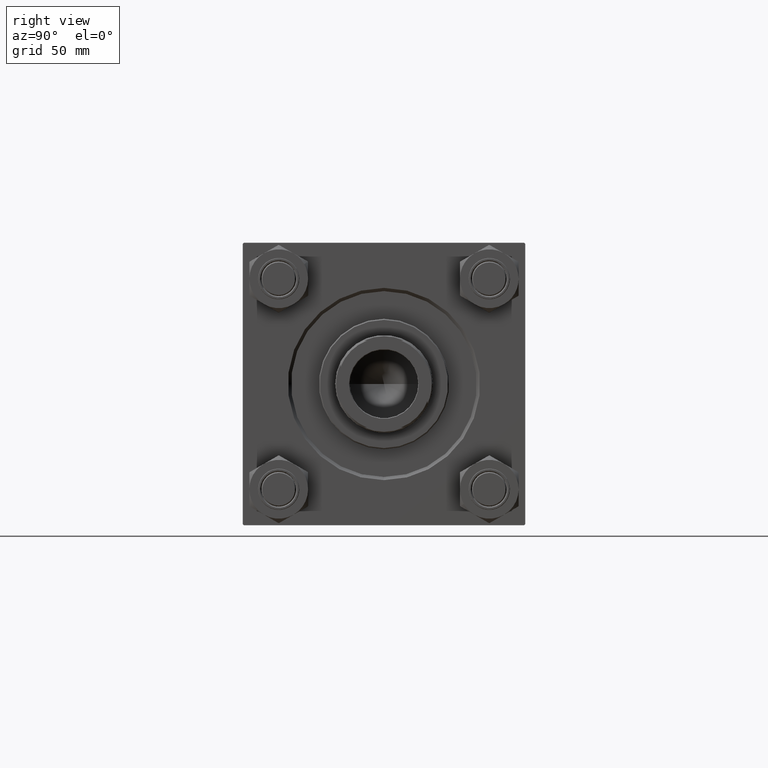
[diagram: clean part render]
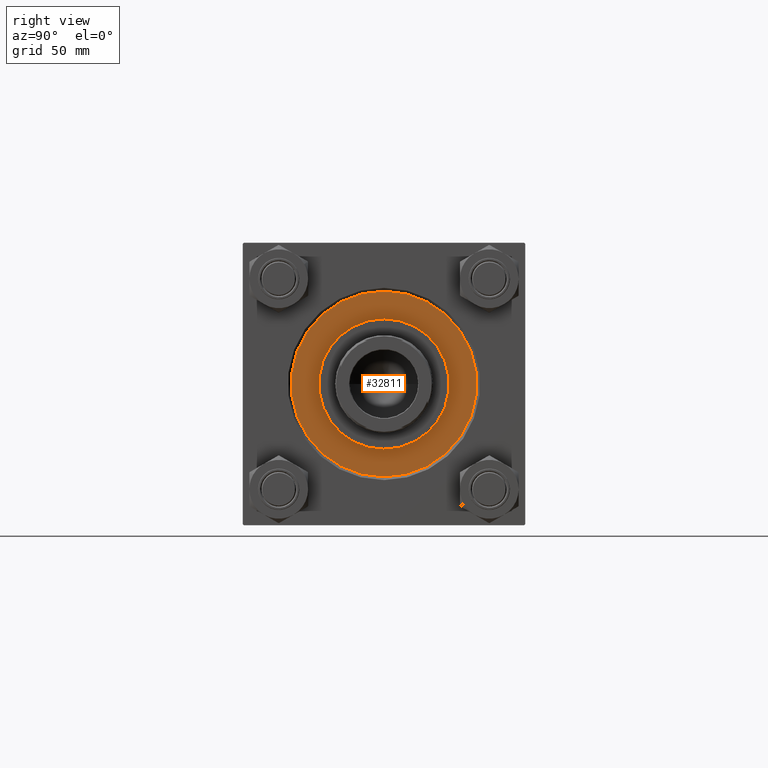
[diagram: same view with one face highlighted and labeled with its STEP entity id]
A machine part, right view. The second image highlights one B-rep face of the part: STEP entity #32811.
In plain terms, the highlighted planar face has unit normal (1, 0, -0).
Its self-contained STEP definition (entity closure, byte-faithful):
#289 = PLANE ( 'NONE',  #11543 ) ;
#493 = CARTESIAN_POINT ( 'NONE',  ( 30.00000000000000000, 3.673940397442059178E-15, 28.69999999999999929 ) ) ;
#6436 = EDGE_LOOP ( 'NONE', ( #31040, #8914 ) ) ;
#8326 = EDGE_CURVE ( 'NONE', #31507, #26405, #49707, .T. ) ;
#8713 = CARTESIAN_POINT ( 'NONE',  ( 42.75000000000000000, 5.235365066354935472E-15, 28.69999999999999929 ) ) ;
#8796 = DIRECTION ( 'NONE',  ( 1.000000000000000000, 0.000000000000000000, 0.000000000000000000 ) ) ;
#8914 = ORIENTED_EDGE ( 'NONE', *, *, #46732, .F. ) ;
#9166 = CARTESIAN_POINT ( 'NONE',  ( 0.000000000000000000, 0.000000000000000000, 28.69999999999999929 ) ) ;
#9713 = CARTESIAN_POINT ( 'NONE',  ( -30.00000000000000000, 0.000000000000000000, 28.69999999999999929 ) ) ;
#11543 = AXIS2_PLACEMENT_3D ( 'NONE', #16037, #15785, #31287 ) ;
#11719 = DIRECTION ( 'NONE',  ( 1.000000000000000000, 0.000000000000000000, 0.000000000000000000 ) ) ;
#12363 = CARTESIAN_POINT ( 'NONE',  ( 0.000000000000000000, 0.000000000000000000, 28.69999999999999929 ) ) ;
#12662 = AXIS2_PLACEMENT_3D ( 'NONE', #23393, #31023, #11719 ) ;
#14872 = CIRCLE ( 'NONE', #22990, 30.00000000000000000 ) ;
#15533 = FACE_OUTER_BOUND ( 'NONE', #38602, .T. ) ;
#15785 = DIRECTION ( 'NONE',  ( 0.000000000000000000, 0.000000000000000000, 1.000000000000000000 ) ) ;
#16037 = CARTESIAN_POINT ( 'NONE',  ( 0.000000000000000000, 0.000000000000000000, 28.69999999999999929 ) ) ;
#16800 = DIRECTION ( 'NONE',  ( 1.000000000000000000, 0.000000000000000000, 0.000000000000000000 ) ) ;
#20311 = ORIENTED_EDGE ( 'NONE', *, *, #20347, .T. ) ;
#20347 = EDGE_CURVE ( 'NONE', #26405, #31507, #42692, .T. ) ;
#20791 = AXIS2_PLACEMENT_3D ( 'NONE', #12363, #28103, #8796 ) ;
#22990 = AXIS2_PLACEMENT_3D ( 'NONE', #9166, #36098, #16800 ) ;
#23393 = CARTESIAN_POINT ( 'NONE',  ( 0.000000000000000000, 0.000000000000000000, 28.69999999999999929 ) ) ;
#24300 = ORIENTED_EDGE ( 'NONE', *, *, #8326, .T. ) ;
#26405 = VERTEX_POINT ( 'NONE', #41730 ) ;
#28103 = DIRECTION ( 'NONE',  ( 0.000000000000000000, 0.000000000000000000, 1.000000000000000000 ) ) ;
#28613 = AXIS2_PLACEMENT_3D ( 'NONE', #32645, #28820, #36690 ) ;
#28820 = DIRECTION ( 'NONE',  ( 0.000000000000000000, 0.000000000000000000, 1.000000000000000000 ) ) ;
#30773 = FACE_BOUND ( 'NONE', #6436, .T. ) ;
#31023 = DIRECTION ( 'NONE',  ( 0.000000000000000000, 0.000000000000000000, 1.000000000000000000 ) ) ;
#31040 = ORIENTED_EDGE ( 'NONE', *, *, #35963, .F. ) ;
#31287 = DIRECTION ( 'NONE',  ( 1.000000000000000000, 0.000000000000000000, -0.000000000000000000 ) ) ;
#31507 = VERTEX_POINT ( 'NONE', #8713 ) ;
#32645 = CARTESIAN_POINT ( 'NONE',  ( 0.000000000000000000, 0.000000000000000000, 28.69999999999999929 ) ) ;
#32811 = ADVANCED_FACE ( 'NONE', ( #30773, #15533 ), #289, .T. ) ;
#34562 = CIRCLE ( 'NONE', #12662, 30.00000000000000000 ) ;
#35963 = EDGE_CURVE ( 'NONE', #49580, #40112, #14872, .T. ) ;
#36098 = DIRECTION ( 'NONE',  ( 0.000000000000000000, 0.000000000000000000, 1.000000000000000000 ) ) ;
#36690 = DIRECTION ( 'NONE',  ( 1.000000000000000000, 0.000000000000000000, 0.000000000000000000 ) ) ;
#38602 = EDGE_LOOP ( 'NONE', ( #20311, #24300 ) ) ;
#40112 = VERTEX_POINT ( 'NONE', #493 ) ;
#41730 = CARTESIAN_POINT ( 'NONE',  ( -42.75000000000000000, 0.000000000000000000, 28.69999999999999929 ) ) ;
#42692 = CIRCLE ( 'NONE', #20791, 42.75000000000000000 ) ;
#46732 = EDGE_CURVE ( 'NONE', #40112, #49580, #34562, .T. ) ;
#49580 = VERTEX_POINT ( 'NONE', #9713 ) ;
#49707 = CIRCLE ( 'NONE', #28613, 42.75000000000000000 ) ;